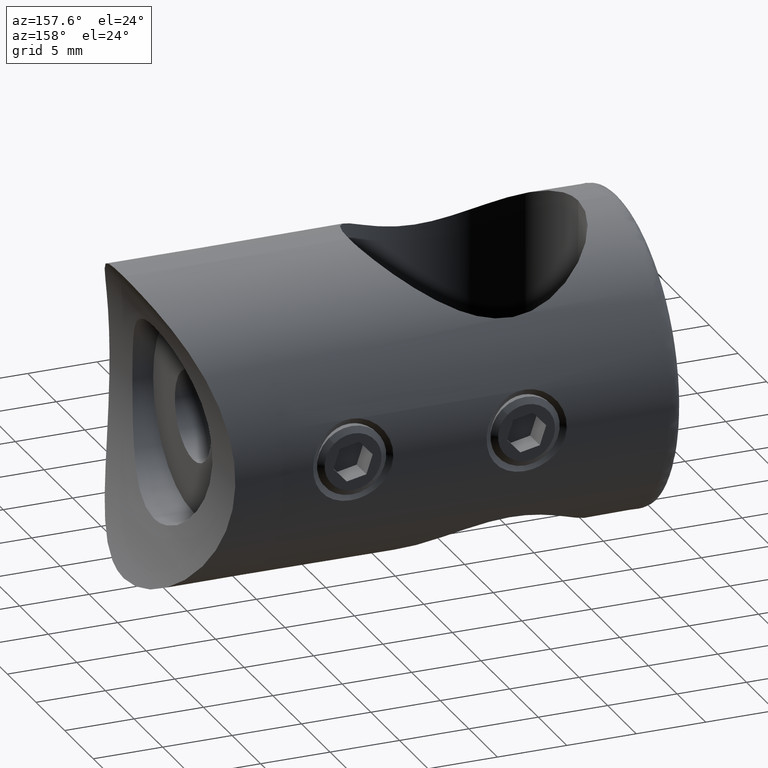
[diagram: clean part render]
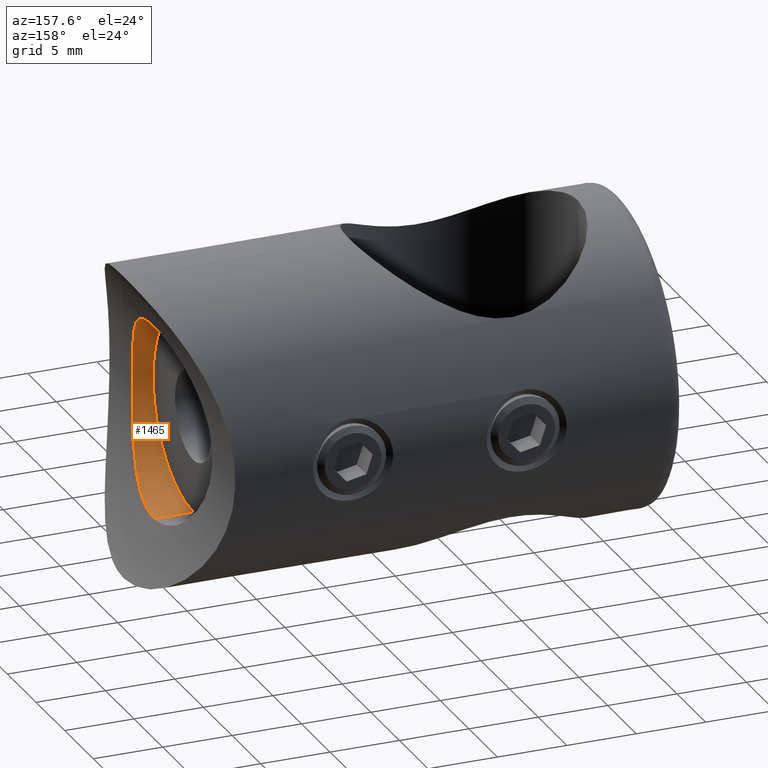
[diagram: same view with one face highlighted and labeled with its STEP entity id]
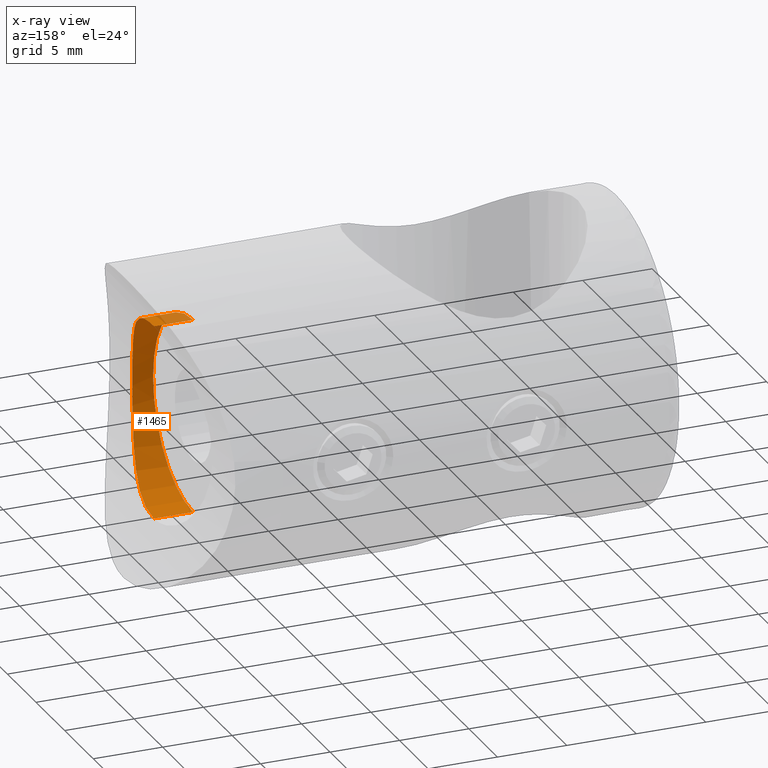
[diagram: x-ray of the same camera — body ghosted, the highlighted face saturated]
A machine part, auxiliary view. The second image highlights one B-rep face of the part: STEP entity #1465.
The next image is the same camera in x-ray: the body ghosted, the highlighted face saturated — about 5% of this face is hidden behind the body in this view.
In plain terms, the highlighted cylindrical surface (partial cylindrical patch) has radius 7 mm, axis along (1, 0, 0).
Its self-contained STEP definition (entity closure, byte-faithful):
#23 = CARTESIAN_POINT ( 'NONE',  ( -6.473113403541546500, -6.066246027499334800, 3.522345169176300600 ) ) ;
#42 = CARTESIAN_POINT ( 'NONE',  ( -5.462010941288777800, -0.2299065425165359400, 6.999999999999998200 ) ) ;
#46 = DIRECTION ( 'NONE',  ( 1.000000000000000000, -0.0000000000000000000, -0.0000000000000000000 ) ) ;
#71 = VERTEX_POINT ( 'NONE', #1238 ) ;
#191 = ORIENTED_EDGE ( 'NONE', *, *, #3226, .F. ) ;
#305 = CARTESIAN_POINT ( 'NONE',  ( 0.0000000000000000000, 0.0000000000000000000, -6.999999999999999100 ) ) ;
#340 = CARTESIAN_POINT ( 'NONE',  ( -6.711664598717563400, -6.761078208210620700, -1.827818941287465500 ) ) ;
#356 = VERTEX_POINT ( 'NONE', #3855 ) ;
#415 = CARTESIAN_POINT ( 'NONE',  ( -5.634513487859239300, -2.483429286567540900, -6.548666048191494200 ) ) ;
#455 = CARTESIAN_POINT ( 'NONE',  ( -5.846041474004478800, -3.707856131072632300, 5.941679215564057900 ) ) ;
#494 = DIRECTION ( 'NONE',  ( 0.0000000000000000000, 0.0000000000000000000, -1.000000000000000000 ) ) ;
#661 = EDGE_CURVE ( 'NONE', #356, #71, #5250, .T. ) ;
#702 = VECTOR ( 'NONE', #1113, 1000.000000000000000 ) ;
#784 = CARTESIAN_POINT ( 'NONE',  ( -6.663879167441377800, -6.626229206671633100, -2.268520910267650700 ) ) ;
#818 = CARTESIAN_POINT ( 'NONE',  ( -6.798571480081336400, -7.000223308239490900, 0.4580005301666430500 ) ) ;
#873 = CARTESIAN_POINT ( 'NONE',  ( -5.462010941288784100, 8.602782317427682500E-016, 6.999999999999999100 ) ) ;
#885 = CARTESIAN_POINT ( 'NONE',  ( 0.0000000000000000000, 8.572527594031472200E-016, 6.999999999999999100 ) ) ;
#891 = CARTESIAN_POINT ( 'NONE',  ( -6.054630558261555600, -4.624129036757534700, 5.274833407450750600 ) ) ;
#1040 = ORIENTED_EDGE ( 'NONE', *, *, #661, .F. ) ;
#1113 = DIRECTION ( 'NONE',  ( 1.000000000000000000, -0.0000000000000000000, -0.0000000000000000000 ) ) ;
#1158 = AXIS2_PLACEMENT_3D ( 'NONE', #4874, #2800, #3683 ) ;
#1182 = CARTESIAN_POINT ( 'NONE',  ( -5.805110849699786100, -3.517851297228874200, -6.068993268458807000 ) ) ;
#1238 = CARTESIAN_POINT ( 'NONE',  ( -8.288489208633095000, 0.0000000000000000000, -6.999999999999999100 ) ) ;
#1264 = CARTESIAN_POINT ( 'NONE',  ( -6.056098841646111500, -4.622706394483129700, -5.261413779578301600 ) ) ;
#1325 = VERTEX_POINT ( 'NONE', #2071 ) ;
#1352 = CARTESIAN_POINT ( 'NONE',  ( -6.354477378098410500, -5.686750825964659300, 4.088083797163786700 ) ) ;
#1465 = ADVANCED_FACE ( 'NONE', ( #4332 ), #2478, .F. ) ;
#1478 = B_SPLINE_CURVE_WITH_KNOTS ( 'NONE', 3,
 ( #5492, #2044, #2962, #4668, #1667, #5066, #415, #2472, #1182, #1646, #3330, #1264, #2552, #5027, #1627, #3389, #2938, #4649, #784, #340, #3370, #2123, #2492, #818, #2531, #3783, #4211, #5087, #23, #1352, #3016, #1765, #3845, #891, #2177, #455, #3475, #2625, #2212, #4727, #5138, #1782, #3824, #3444, #42, #873 ),
 .UNSPECIFIED., .F., .F.,
 ( 4, 2, 2, 2, 2, 2, 2, 2, 2, 2, 2, 2, 2, 2, 2, 2, 2, 2, 2, 2, 2, 2, 4 ),
 ( 1.138686317826386700E-018, 0.001380042155359933600, 0.002070063233039899500, 0.002760084310719865100, 0.004140126466079794600, 0.004830147543759759400, 0.005520168621439724100, 0.006900210776799652800, 0.008280252932159580500, 0.008970274009839542700, 0.009660295087519506600, 0.01104033724287943300, 0.01242037939823935900, 0.01380042155359928500, 0.01518046370895920900, 0.01587048478663917100, 0.01656050586431913000, 0.01794054801967905800, 0.01863056909735902000, 0.01932059017503898500, 0.02070063233039891700, 0.02139065340807888200, 0.02208067448575884800 ),
 .UNSPECIFIED. ) ;
#1627 = CARTESIAN_POINT ( 'NONE',  ( -6.314542808580718300, -5.559067688385192200, -4.278751015699572100 ) ) ;
#1646 = CARTESIAN_POINT ( 'NONE',  ( -5.927527177045811300, -4.086102221723155700, -5.688212187861170200 ) ) ;
#1667 = CARTESIAN_POINT ( 'NONE',  ( -5.554517833647481400, -1.823376400698542200, -6.762295605859246300 ) ) ;
#1765 = CARTESIAN_POINT ( 'NONE',  ( -6.228309472640980000, -5.260942563061100900, 4.623270238624553700 ) ) ;
#1782 = CARTESIAN_POINT ( 'NONE',  ( -5.497984618698180400, -1.150402832486478300, 6.908708496965460600 ) ) ;
#1886 = LINE ( 'NONE', #885, #4143 ) ;
#2044 = CARTESIAN_POINT ( 'NONE',  ( -5.462010941288780500, -0.4669969245896556400, -7.000000000000000000 ) ) ;
#2059 = AXIS2_PLACEMENT_3D ( 'NONE', #2558, #46, #494 ) ;
#2071 = CARTESIAN_POINT ( 'NONE',  ( -5.462010941288783200, -9.557508267639912500E-016, -6.999999999999999100 ) ) ;
#2123 = CARTESIAN_POINT ( 'NONE',  ( -6.781539888634363000, -6.954377344951916800, -0.9219541280076064500 ) ) ;
#2177 = CARTESIAN_POINT ( 'NONE',  ( -5.968176913102908500, -4.274782865555295100, 5.561764774777000900 ) ) ;
#2212 = CARTESIAN_POINT ( 'NONE',  ( -5.697266832409267700, -2.899912707781719500, 6.375141349562459100 ) ) ;
#2472 = CARTESIAN_POINT ( 'NONE',  ( -5.730146120244835800, -3.117523909242639200, -6.284173517955240500 ) ) ;
#2478 = CYLINDRICAL_SURFACE ( 'NONE', #2059, 6.999999999999999100 ) ;
#2492 = CARTESIAN_POINT ( 'NONE',  ( -6.798406328627501200, -6.999775039961941800, -0.4648012917131119100 ) ) ;
#2531 = CARTESIAN_POINT ( 'NONE',  ( -6.781276952737588500, -6.953656641524682800, 0.9263319075457070500 ) ) ;
#2552 = CARTESIAN_POINT ( 'NONE',  ( -6.099447097399723500, -4.790486778337673000, -5.109048936112835700 ) ) ;
#2558 = CARTESIAN_POINT ( 'NONE',  ( 0.0000000000000000000, 0.0000000000000000000, 0.0000000000000000000 ) ) ;
#2625 = CARTESIAN_POINT ( 'NONE',  ( -5.731950615582849000, -3.106209219275654700, 6.277269058405035000 ) ) ;
#2800 = DIRECTION ( 'NONE',  ( 1.000000000000000000, -0.0000000000000000000, -0.0000000000000000000 ) ) ;
#2938 = CARTESIAN_POINT ( 'NONE',  ( -6.546276890666638900, -6.285433359969306200, -3.114641589165498400 ) ) ;
#2962 = CARTESIAN_POINT ( 'NONE',  ( -5.480536354164986100, -0.9252799307707593200, -6.953744582645815500 ) ) ;
#3016 = CARTESIAN_POINT ( 'NONE',  ( -6.313217937352096200, -5.551073912878929500, 4.270564689234253900 ) ) ;
#3226 = EDGE_CURVE ( 'NONE', #71, #1325, #5209, .T. ) ;
#3259 = VERTEX_POINT ( 'NONE', #4539 ) ;
#3330 = CARTESIAN_POINT ( 'NONE',  ( -5.970201138954055700, -4.270856983870411100, -5.550826064006777500 ) ) ;
#3370 = CARTESIAN_POINT ( 'NONE',  ( -6.732250115998695600, -6.818290832855924000, -1.601327897754102300 ) ) ;
#3389 = CARTESIAN_POINT ( 'NONE',  ( -6.474456070662999900, -6.070480284092352200, -3.515709450288016000 ) ) ;
#3444 = CARTESIAN_POINT ( 'NONE',  ( -5.466501312431665500, -0.4597449989763620600, 6.988701301967245700 ) ) ;
#3475 = CARTESIAN_POINT ( 'NONE',  ( -5.806399333221272700, -3.510601762462130600, 6.060389245825724000 ) ) ;
#3683 = DIRECTION ( 'NONE',  ( 0.0000000000000000000, 0.0000000000000000000, -1.000000000000000000 ) ) ;
#3783 = CARTESIAN_POINT ( 'NONE',  ( -6.715750246833586300, -6.772730272047964700, 1.827992383256205700 ) ) ;
#3824 = CARTESIAN_POINT ( 'NONE',  ( -5.484426272951916200, -0.9192842907160123600, 6.943214510948453500 ) ) ;
#3845 = CARTESIAN_POINT ( 'NONE',  ( -6.184673206804126800, -5.106440062053335000, 4.793316085852504600 ) ) ;
#3855 = CARTESIAN_POINT ( 'NONE',  ( -8.288489208633095000, 8.572527594031472200E-016, 6.999999999999999100 ) ) ;
#3872 = EDGE_CURVE ( 'NONE', #356, #3259, #1886, .T. ) ;
#4039 = ORIENTED_EDGE ( 'NONE', *, *, #5311, .F. ) ;
#4143 = VECTOR ( 'NONE', #4286, 1000.000000000000000 ) ;
#4175 = EDGE_LOOP ( 'NONE', ( #1040, #4378, #4039, #191 ) ) ;
#4211 = CARTESIAN_POINT ( 'NONE',  ( -6.667713982829026200, -6.638941885210332600, 2.266749721120919300 ) ) ;
#4286 = DIRECTION ( 'NONE',  ( 1.000000000000000000, -0.0000000000000000000, -0.0000000000000000000 ) ) ;
#4332 = FACE_OUTER_BOUND ( 'NONE', #4175, .T. ) ;
#4378 = ORIENTED_EDGE ( 'NONE', *, *, #3872, .T. ) ;
#4539 = CARTESIAN_POINT ( 'NONE',  ( -5.462010941288784100, 8.602782317427682500E-016, 6.999999999999999100 ) ) ;
#4649 = CARTESIAN_POINT ( 'NONE',  ( -6.636646554777061400, -6.548507813699219000, -2.483739439195236100 ) ) ;
#4668 = CARTESIAN_POINT ( 'NONE',  ( -5.532945626901210700, -1.600400691958120800, -6.818459818237600200 ) ) ;
#4727 = CARTESIAN_POINT ( 'NONE',  ( -5.602265051701017700, -2.268798673232438100, 6.637788512671861000 ) ) ;
#4874 = CARTESIAN_POINT ( 'NONE',  ( -8.288489208633095000, 0.0000000000000000000, 0.0000000000000000000 ) ) ;
#5027 = CARTESIAN_POINT ( 'NONE',  ( -6.228894286880422900, -5.270165752266080100, -4.629247386318513500 ) ) ;
#5066 = CARTESIAN_POINT ( 'NONE',  ( -5.605308556511667800, -2.265163184911149800, -6.627396102948036800 ) ) ;
#5087 = CARTESIAN_POINT ( 'NONE',  ( -6.545504760193366200, -6.283191694235760000, 3.120129129842009100 ) ) ;
#5138 = CARTESIAN_POINT ( 'NONE',  ( -5.550971277338282700, -1.831877513375252700, 6.771923203059302800 ) ) ;
#5209 = LINE ( 'NONE', #305, #702 ) ;
#5250 = CIRCLE ( 'NONE', #1158, 6.999999999999999100 ) ;
#5311 = EDGE_CURVE ( 'NONE', #1325, #3259, #1478, .T. ) ;
#5492 = CARTESIAN_POINT ( 'NONE',  ( -5.462010941288783200, -9.557508267639912500E-016, -6.999999999999999100 ) ) ;